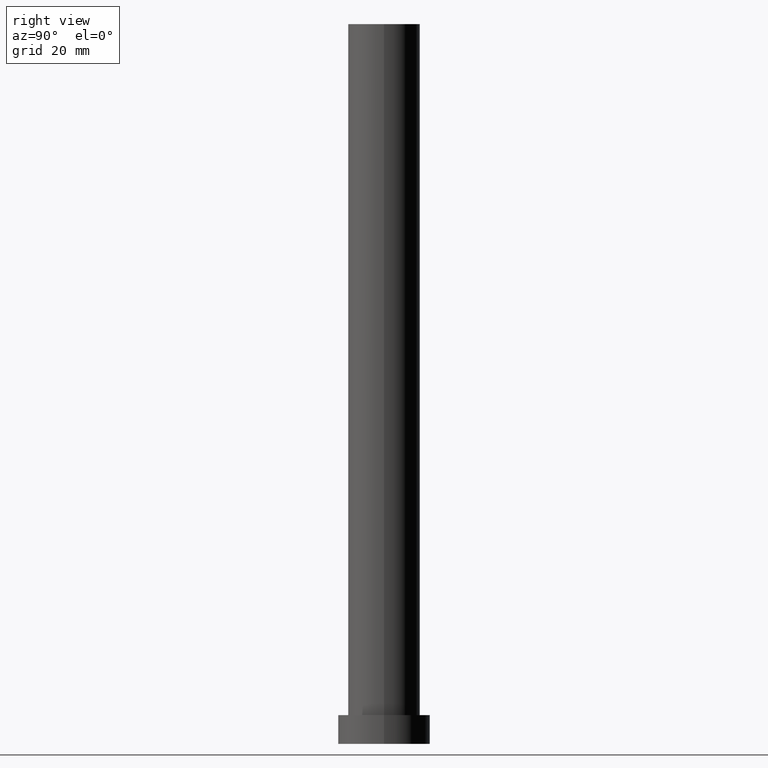
[diagram: clean part render]
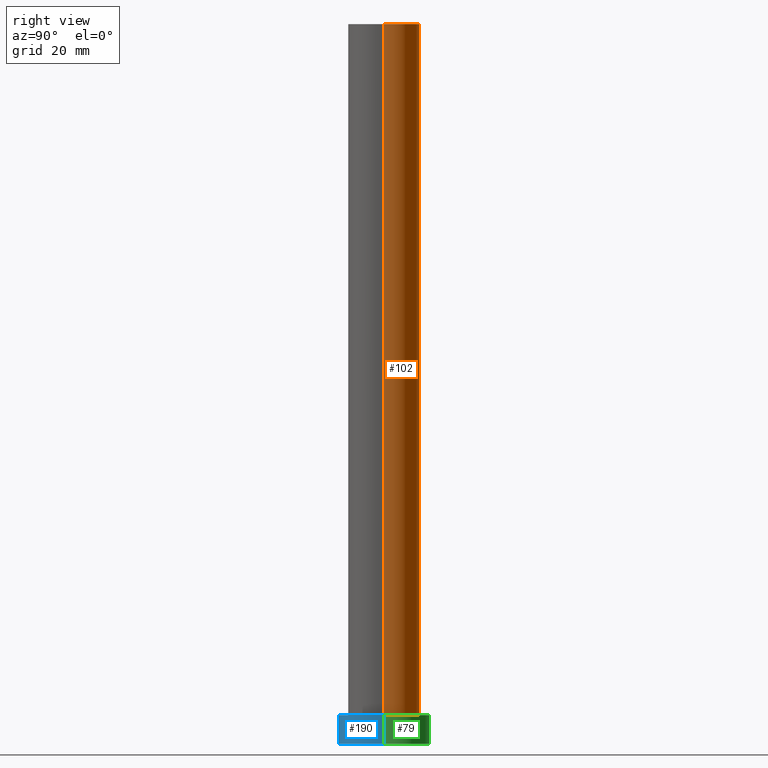
[diagram: same view with three faces highlighted in distinct colors, each labeled with its STEP entity id]
A machine part, right view with three faces highlighted in distinct colors.
Their STEP definitions:

[orange] entity #102 — the highlighted cylindrical surface (edge-blend (fillet) strip) has radius 12.5 mm, axis along (-0, -0, -1).
#3 = AXIS2_PLACEMENT_3D ( 'NONE', #100, #175, #154 ) ;
#23 = CARTESIAN_POINT ( 'NONE',  ( -12.50000000000000000, 0.000000000000000000, 10.00000000000000000 ) ) ;
#37 = ORIENTED_EDGE ( 'NONE', *, *, #106, .F. ) ;
#41 = CIRCLE ( 'NONE', #3, 12.50000000000000000 ) ;
#73 = DIRECTION ( 'NONE',  ( 0.000000000000000000, 0.000000000000000000, 1.000000000000000000 ) ) ;
#81 = CARTESIAN_POINT ( 'NONE',  ( 12.50000000000000000, 1.530808498934191521E-15, 250.0000000000000000 ) ) ;
#84 = CYLINDRICAL_SURFACE ( 'NONE', #162, 12.50000000000000000 ) ;
#88 = DIRECTION ( 'NONE',  ( -0.000000000000000000, -0.000000000000000000, -1.000000000000000000 ) ) ;
#96 = CARTESIAN_POINT ( 'NONE',  ( 12.50000000000000000, 1.530808498934191521E-15, 250.0000000000000000 ) ) ;
#100 = CARTESIAN_POINT ( 'NONE',  ( 0.000000000000000000, 0.000000000000000000, 10.00000000000000000 ) ) ;
#102 = ADVANCED_FACE ( 'NONE', ( #178 ), #84, .T. ) ;
#106 = EDGE_CURVE ( 'NONE', #236, #200, #241, .T. ) ;
#124 = EDGE_CURVE ( 'NONE', #240, #176, #239, .T. ) ;
#135 = CARTESIAN_POINT ( 'NONE',  ( -12.50000000000000000, 0.000000000000000000, 250.0000000000000000 ) ) ;
#144 = ORIENTED_EDGE ( 'NONE', *, *, #244, .F. ) ;
#145 = DIRECTION ( 'NONE',  ( 1.000000000000000000, 0.000000000000000000, 0.000000000000000000 ) ) ;
#146 = ORIENTED_EDGE ( 'NONE', *, *, #124, .T. ) ;
#147 = CARTESIAN_POINT ( 'NONE',  ( 12.50000000000000000, 1.530808498934191521E-15, 10.00000000000000000 ) ) ;
#149 = EDGE_LOOP ( 'NONE', ( #144, #146, #255, #37 ) ) ;
#154 = DIRECTION ( 'NONE',  ( 1.000000000000000000, 0.000000000000000000, 0.000000000000000000 ) ) ;
#155 = CARTESIAN_POINT ( 'NONE',  ( 0.000000000000000000, 0.000000000000000000, 250.0000000000000000 ) ) ;
#157 = DIRECTION ( 'NONE',  ( -1.000000000000000000, 0.000000000000000000, 0.000000000000000000 ) ) ;
#162 = AXIS2_PLACEMENT_3D ( 'NONE', #155, #88, #157 ) ;
#170 = CARTESIAN_POINT ( 'NONE',  ( -12.50000000000000000, 0.000000000000000000, 250.0000000000000000 ) ) ;
#173 = DIRECTION ( 'NONE',  ( -0.000000000000000000, -0.000000000000000000, -1.000000000000000000 ) ) ;
#175 = DIRECTION ( 'NONE',  ( 0.000000000000000000, 0.000000000000000000, 1.000000000000000000 ) ) ;
#176 = VERTEX_POINT ( 'NONE', #147 ) ;
#178 = FACE_OUTER_BOUND ( 'NONE', #149, .T. ) ;
#179 = CIRCLE ( 'NONE', #242, 12.50000000000000000 ) ;
#184 = VECTOR ( 'NONE', #243, 1000.000000000000000 ) ;
#200 = VERTEX_POINT ( 'NONE', #23 ) ;
#205 = VECTOR ( 'NONE', #173, 1000.000000000000000 ) ;
#230 = EDGE_CURVE ( 'NONE', #176, #200, #41, .T. ) ;
#236 = VERTEX_POINT ( 'NONE', #170 ) ;
#239 = LINE ( 'NONE', #81, #205 ) ;
#240 = VERTEX_POINT ( 'NONE', #96 ) ;
#241 = LINE ( 'NONE', #135, #184 ) ;
#242 = AXIS2_PLACEMENT_3D ( 'NONE', #252, #73, #145 ) ;
#243 = DIRECTION ( 'NONE',  ( -0.000000000000000000, -0.000000000000000000, -1.000000000000000000 ) ) ;
#244 = EDGE_CURVE ( 'NONE', #240, #236, #179, .T. ) ;
#252 = CARTESIAN_POINT ( 'NONE',  ( 0.000000000000000000, 0.000000000000000000, 250.0000000000000000 ) ) ;
#255 = ORIENTED_EDGE ( 'NONE', *, *, #230, .T. ) ;

[blue] entity #190 — the highlighted cylindrical surface (partial cylindrical patch) has radius 16 mm, axis along (-0, -0, -1).
#1 = CIRCLE ( 'NONE', #127, 16.00000000000000000 ) ;
#13 = LINE ( 'NONE', #39, #109 ) ;
#16 = VERTEX_POINT ( 'NONE', #132 ) ;
#17 = DIRECTION ( 'NONE',  ( -0.000000000000000000, -0.000000000000000000, -1.000000000000000000 ) ) ;
#32 = CARTESIAN_POINT ( 'NONE',  ( -16.00000000000000000, 0.000000000000000000, 10.00000000000000000 ) ) ;
#39 = CARTESIAN_POINT ( 'NONE',  ( -16.00000000000000000, 0.000000000000000000, 10.00000000000000000 ) ) ;
#43 = DIRECTION ( 'NONE',  ( 0.000000000000000000, 0.000000000000000000, 1.000000000000000000 ) ) ;
#53 = FACE_OUTER_BOUND ( 'NONE', #78, .T. ) ;
#54 = VERTEX_POINT ( 'NONE', #32 ) ;
#56 = CARTESIAN_POINT ( 'NONE',  ( 16.00000000000000000, 1.959434878635765131E-15, 10.00000000000000000 ) ) ;
#59 = CARTESIAN_POINT ( 'NONE',  ( 0.000000000000000000, 0.000000000000000000, 0.000000000000000000 ) ) ;
#64 = EDGE_CURVE ( 'NONE', #54, #16, #1, .T. ) ;
#78 = EDGE_LOOP ( 'NONE', ( #130, #197, #153, #116 ) ) ;
#83 = CARTESIAN_POINT ( 'NONE',  ( -16.00000000000000000, 0.000000000000000000, 0.000000000000000000 ) ) ;
#87 = AXIS2_PLACEMENT_3D ( 'NONE', #59, #133, #93 ) ;
#93 = DIRECTION ( 'NONE',  ( 1.000000000000000000, 0.000000000000000000, 0.000000000000000000 ) ) ;
#98 = LINE ( 'NONE', #56, #226 ) ;
#104 = CIRCLE ( 'NONE', #87, 16.00000000000000000 ) ;
#109 = VECTOR ( 'NONE', #198, 1000.000000000000000 ) ;
#116 = ORIENTED_EDGE ( 'NONE', *, *, #231, .T. ) ;
#127 = AXIS2_PLACEMENT_3D ( 'NONE', #181, #43, #202 ) ;
#129 = CARTESIAN_POINT ( 'NONE',  ( 0.000000000000000000, 0.000000000000000000, 10.00000000000000000 ) ) ;
#130 = ORIENTED_EDGE ( 'NONE', *, *, #225, .F. ) ;
#132 = CARTESIAN_POINT ( 'NONE',  ( 16.00000000000000000, 1.959434878635765131E-15, 10.00000000000000000 ) ) ;
#133 = DIRECTION ( 'NONE',  ( 0.000000000000000000, 0.000000000000000000, 1.000000000000000000 ) ) ;
#150 = DIRECTION ( 'NONE',  ( -1.000000000000000000, 0.000000000000000000, 0.000000000000000000 ) ) ;
#153 = ORIENTED_EDGE ( 'NONE', *, *, #169, .T. ) ;
#169 = EDGE_CURVE ( 'NONE', #54, #217, #13, .T. ) ;
#181 = CARTESIAN_POINT ( 'NONE',  ( 0.000000000000000000, 0.000000000000000000, 10.00000000000000000 ) ) ;
#190 = ADVANCED_FACE ( 'NONE', ( #53 ), #201, .T. ) ;
#193 = AXIS2_PLACEMENT_3D ( 'NONE', #129, #219, #150 ) ;
#197 = ORIENTED_EDGE ( 'NONE', *, *, #64, .F. ) ;
#198 = DIRECTION ( 'NONE',  ( -0.000000000000000000, -0.000000000000000000, -1.000000000000000000 ) ) ;
#201 = CYLINDRICAL_SURFACE ( 'NONE', #193, 16.00000000000000000 ) ;
#202 = DIRECTION ( 'NONE',  ( 1.000000000000000000, 0.000000000000000000, 0.000000000000000000 ) ) ;
#217 = VERTEX_POINT ( 'NONE', #83 ) ;
#219 = DIRECTION ( 'NONE',  ( -0.000000000000000000, -0.000000000000000000, -1.000000000000000000 ) ) ;
#225 = EDGE_CURVE ( 'NONE', #16, #253, #98, .T. ) ;
#226 = VECTOR ( 'NONE', #17, 1000.000000000000000 ) ;
#231 = EDGE_CURVE ( 'NONE', #217, #253, #104, .T. ) ;
#234 = CARTESIAN_POINT ( 'NONE',  ( 16.00000000000000000, 1.959434878635765131E-15, 0.000000000000000000 ) ) ;
#253 = VERTEX_POINT ( 'NONE', #234 ) ;

[green] entity #79 — the highlighted cylindrical surface (partial cylindrical patch) has radius 16 mm, axis along (-0, -0, -1).
#5 = EDGE_CURVE ( 'NONE', #253, #217, #35, .T. ) ;
#6 = DIRECTION ( 'NONE',  ( 1.000000000000000000, 0.000000000000000000, 0.000000000000000000 ) ) ;
#7 = DIRECTION ( 'NONE',  ( -1.000000000000000000, 0.000000000000000000, 0.000000000000000000 ) ) ;
#9 = CYLINDRICAL_SURFACE ( 'NONE', #199, 16.00000000000000000 ) ;
#13 = LINE ( 'NONE', #39, #109 ) ;
#16 = VERTEX_POINT ( 'NONE', #132 ) ;
#17 = DIRECTION ( 'NONE',  ( -0.000000000000000000, -0.000000000000000000, -1.000000000000000000 ) ) ;
#18 = DIRECTION ( 'NONE',  ( 0.000000000000000000, 0.000000000000000000, 1.000000000000000000 ) ) ;
#32 = CARTESIAN_POINT ( 'NONE',  ( -16.00000000000000000, 0.000000000000000000, 10.00000000000000000 ) ) ;
#35 = CIRCLE ( 'NONE', #246, 16.00000000000000000 ) ;
#38 = DIRECTION ( 'NONE',  ( 0.000000000000000000, 0.000000000000000000, 1.000000000000000000 ) ) ;
#39 = CARTESIAN_POINT ( 'NONE',  ( -16.00000000000000000, 0.000000000000000000, 10.00000000000000000 ) ) ;
#54 = VERTEX_POINT ( 'NONE', #32 ) ;
#56 = CARTESIAN_POINT ( 'NONE',  ( 16.00000000000000000, 1.959434878635765131E-15, 10.00000000000000000 ) ) ;
#58 = ORIENTED_EDGE ( 'NONE', *, *, #5, .T. ) ;
#74 = CARTESIAN_POINT ( 'NONE',  ( 0.000000000000000000, 0.000000000000000000, 0.000000000000000000 ) ) ;
#79 = ADVANCED_FACE ( 'NONE', ( #119 ), #9, .T. ) ;
#80 = CIRCLE ( 'NONE', #212, 16.00000000000000000 ) ;
#82 = ORIENTED_EDGE ( 'NONE', *, *, #225, .T. ) ;
#83 = CARTESIAN_POINT ( 'NONE',  ( -16.00000000000000000, 0.000000000000000000, 0.000000000000000000 ) ) ;
#98 = LINE ( 'NONE', #56, #226 ) ;
#101 = CARTESIAN_POINT ( 'NONE',  ( 0.000000000000000000, 0.000000000000000000, 10.00000000000000000 ) ) ;
#109 = VECTOR ( 'NONE', #198, 1000.000000000000000 ) ;
#119 = FACE_OUTER_BOUND ( 'NONE', #194, .T. ) ;
#132 = CARTESIAN_POINT ( 'NONE',  ( 16.00000000000000000, 1.959434878635765131E-15, 10.00000000000000000 ) ) ;
#136 = EDGE_CURVE ( 'NONE', #16, #54, #80, .T. ) ;
#169 = EDGE_CURVE ( 'NONE', #54, #217, #13, .T. ) ;
#171 = ORIENTED_EDGE ( 'NONE', *, *, #169, .F. ) ;
#177 = DIRECTION ( 'NONE',  ( -0.000000000000000000, -0.000000000000000000, -1.000000000000000000 ) ) ;
#194 = EDGE_LOOP ( 'NONE', ( #221, #82, #58, #171 ) ) ;
#198 = DIRECTION ( 'NONE',  ( -0.000000000000000000, -0.000000000000000000, -1.000000000000000000 ) ) ;
#199 = AXIS2_PLACEMENT_3D ( 'NONE', #101, #177, #7 ) ;
#212 = AXIS2_PLACEMENT_3D ( 'NONE', #222, #38, #6 ) ;
#217 = VERTEX_POINT ( 'NONE', #83 ) ;
#220 = DIRECTION ( 'NONE',  ( 1.000000000000000000, 0.000000000000000000, 0.000000000000000000 ) ) ;
#221 = ORIENTED_EDGE ( 'NONE', *, *, #136, .F. ) ;
#222 = CARTESIAN_POINT ( 'NONE',  ( 0.000000000000000000, 0.000000000000000000, 10.00000000000000000 ) ) ;
#225 = EDGE_CURVE ( 'NONE', #16, #253, #98, .T. ) ;
#226 = VECTOR ( 'NONE', #17, 1000.000000000000000 ) ;
#234 = CARTESIAN_POINT ( 'NONE',  ( 16.00000000000000000, 1.959434878635765131E-15, 0.000000000000000000 ) ) ;
#246 = AXIS2_PLACEMENT_3D ( 'NONE', #74, #18, #220 ) ;
#253 = VERTEX_POINT ( 'NONE', #234 ) ;